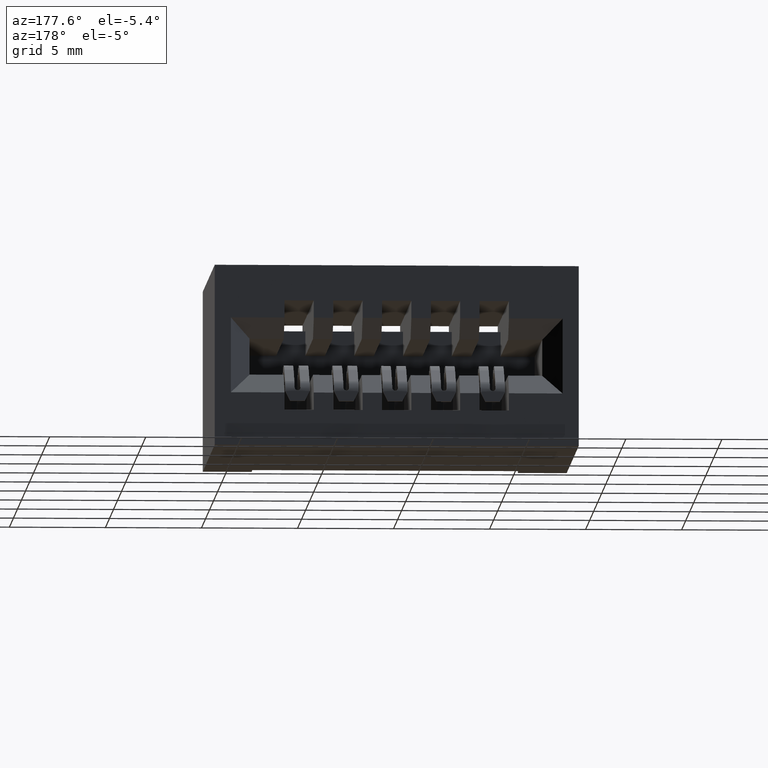
[diagram: clean part render]
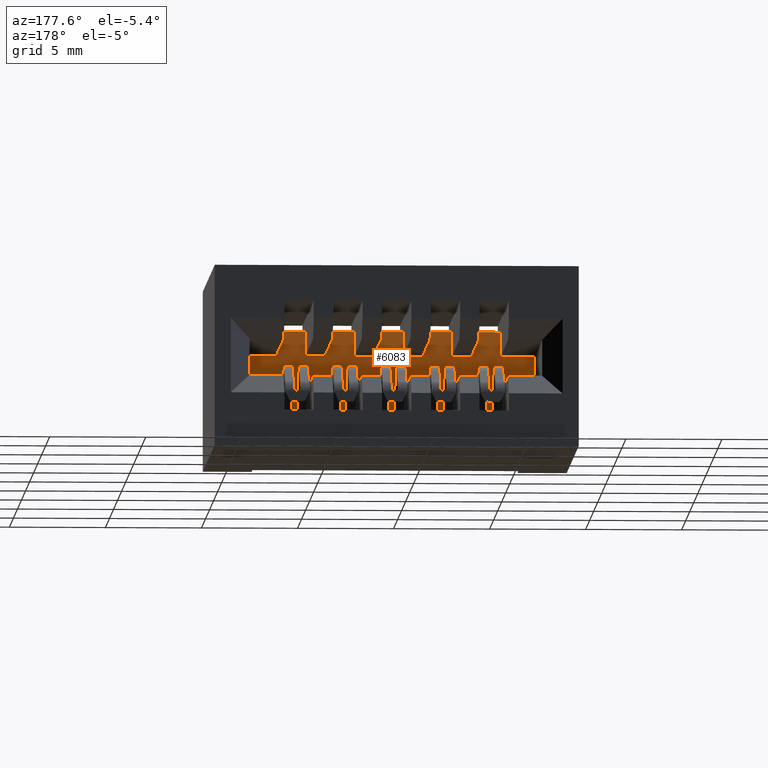
[diagram: same view with one face highlighted and labeled with its STEP entity id]
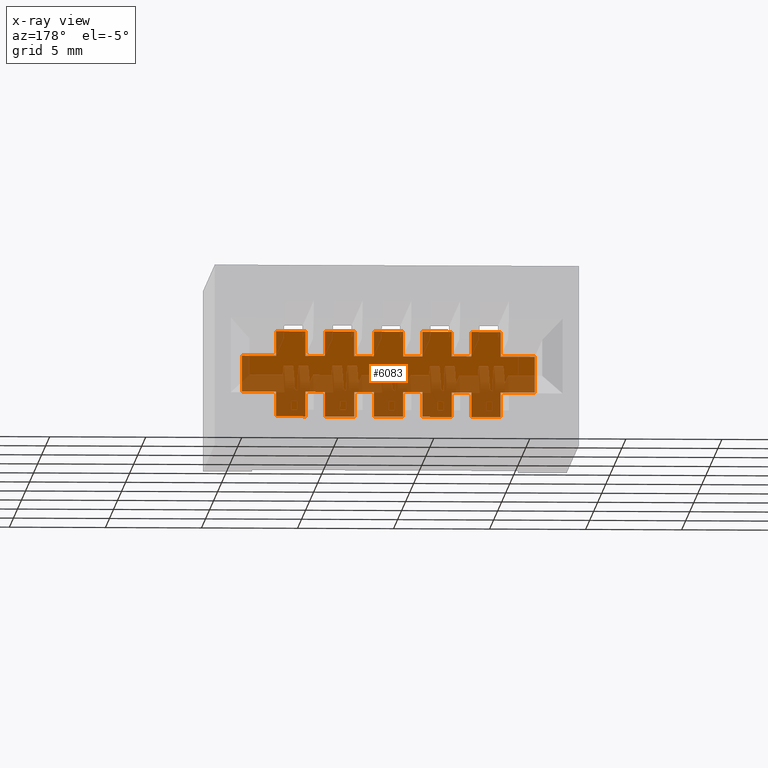
[diagram: x-ray of the same camera — body ghosted, the highlighted face saturated]
A machine part, auxiliary view. The second image highlights one B-rep face of the part: STEP entity #6083.
The next image is the same camera in x-ray: the body ghosted, the highlighted face saturated — about 55% of this face is hidden behind the body in this view.
In plain terms, the highlighted planar face has unit normal (0, -1, 0).
Its self-contained STEP definition (entity closure, byte-faithful):
#28 = CARTESIAN_POINT ( 'NONE',  ( 0.8199999999999998400, 0.1799999999999999900, -0.2725000000000000200 ) ) ;
#48 = DIRECTION ( 'NONE',  ( 1.000000000000000000, -0.0000000000000000000, -0.0000000000000000000 ) ) ;
#64 = ORIENTED_EDGE ( 'NONE', *, *, #4363, .T. ) ;
#73 = ORIENTED_EDGE ( 'NONE', *, *, #2637, .T. ) ;
#74 = CARTESIAN_POINT ( 'NONE',  ( 0.7199999999999998600, 0.1799999999999999900, -0.2725000000000000200 ) ) ;
#81 = VECTOR ( 'NONE', #4073, 39.37007874015748100 ) ;
#98 = CARTESIAN_POINT ( 'NONE',  ( 0.8199999999999998400, 0.1799999999999999900, -0.1479999999999999400 ) ) ;
#154 = CARTESIAN_POINT ( 'NONE',  ( 0.6200000000000000000, 0.1799999999999999900, -0.2725000000000000200 ) ) ;
#173 = CARTESIAN_POINT ( 'NONE',  ( 0.4799999999999999800, 0.1799999999999999900, -0.2220000000000001100 ) ) ;
#188 = DIRECTION ( 'NONE',  ( 0.0000000000000000000, 0.0000000000000000000, -1.000000000000000000 ) ) ;
#208 = VECTOR ( 'NONE', #7010, 39.37007874015748100 ) ;
#234 = VERTEX_POINT ( 'NONE', #2728 ) ;
#242 = ORIENTED_EDGE ( 'NONE', *, *, #6968, .F. ) ;
#281 = DIRECTION ( 'NONE',  ( 0.0000000000000000000, 0.0000000000000000000, -1.000000000000000000 ) ) ;
#293 = DIRECTION ( 'NONE',  ( 0.0000000000000000000, -1.000000000000000000, 0.0000000000000000000 ) ) ;
#313 = VERTEX_POINT ( 'NONE', #4986 ) ;
#324 = ORIENTED_EDGE ( 'NONE', *, *, #6653, .T. ) ;
#395 = VECTOR ( 'NONE', #841, 39.37007874015748100 ) ;
#410 = DIRECTION ( 'NONE',  ( -0.0000000000000000000, -0.0000000000000000000, -1.000000000000000000 ) ) ;
#432 = DIRECTION ( 'NONE',  ( -0.0000000000000000000, -0.0000000000000000000, -1.000000000000000000 ) ) ;
#492 = VECTOR ( 'NONE', #3937, 39.37007874015748100 ) ;
#506 = CARTESIAN_POINT ( 'NONE',  ( 0.5800000000000000700, 0.1799999999999999900, -0.1479999999999999100 ) ) ;
#518 = ORIENTED_EDGE ( 'NONE', *, *, #5367, .T. ) ;
#525 = LINE ( 'NONE', #2179, #3462 ) ;
#531 = VECTOR ( 'NONE', #2991, 39.37007874015748100 ) ;
#542 = CARTESIAN_POINT ( 'NONE',  ( 0.7199999999999998600, 0.1799999999999999900, -0.2220000000000001400 ) ) ;
#583 = VERTEX_POINT ( 'NONE', #6255 ) ;
#590 = CARTESIAN_POINT ( 'NONE',  ( 0.4799999999999999800, 0.1799999999999999900, -0.09750000000000005900 ) ) ;
#604 = ORIENTED_EDGE ( 'NONE', *, *, #6218, .F. ) ;
#611 = ORIENTED_EDGE ( 'NONE', *, *, #637, .T. ) ;
#619 = LINE ( 'NONE', #6635, #2147 ) ;
#637 = EDGE_CURVE ( 'NONE', #1033, #7137, #739, .T. ) ;
#662 = EDGE_CURVE ( 'NONE', #4400, #234, #2263, .T. ) ;
#676 = LINE ( 'NONE', #5632, #492 ) ;
#687 = EDGE_CURVE ( 'NONE', #881, #2327, #3304, .T. ) ;
#718 = LINE ( 'NONE', #2965, #6882 ) ;
#729 = CARTESIAN_POINT ( 'NONE',  ( 0.6799999999999999400, 0.1799999999999999900, -0.2220000000000001400 ) ) ;
#739 = LINE ( 'NONE', #6775, #5371 ) ;
#798 = ORIENTED_EDGE ( 'NONE', *, *, #1838, .T. ) ;
#803 = ORIENTED_EDGE ( 'NONE', *, *, #4804, .F. ) ;
#841 = DIRECTION ( 'NONE',  ( 1.000000000000000000, 0.0000000000000000000, 0.0000000000000000000 ) ) ;
#881 = VERTEX_POINT ( 'NONE', #7465 ) ;
#882 = DIRECTION ( 'NONE',  ( -0.0000000000000000000, -0.0000000000000000000, -1.000000000000000000 ) ) ;
#883 = DIRECTION ( 'NONE',  ( 0.0000000000000000000, 0.0000000000000000000, -1.000000000000000000 ) ) ;
#890 = VERTEX_POINT ( 'NONE', #3048 ) ;
#909 = EDGE_CURVE ( 'NONE', #4513, #583, #6273, .T. ) ;
#967 = VECTOR ( 'NONE', #5763, 39.37007874015748100 ) ;
#971 = VERTEX_POINT ( 'NONE', #3040 ) ;
#986 = CARTESIAN_POINT ( 'NONE',  ( 0.4200000000000000400, 0.1799999999999999900, -0.09750000000000005900 ) ) ;
#989 = ORIENTED_EDGE ( 'NONE', *, *, #5721, .T. ) ;
#1000 = VERTEX_POINT ( 'NONE', #2842 ) ;
#1033 = VERTEX_POINT ( 'NONE', #2483 ) ;
#1055 = VECTOR ( 'NONE', #3283, 39.37007874015748100 ) ;
#1080 = LINE ( 'NONE', #6614, #2245 ) ;
#1082 = VECTOR ( 'NONE', #3868, 39.37007874015748100 ) ;
#1129 = CARTESIAN_POINT ( 'NONE',  ( 0.6200000000000000000, 0.1799999999999999900, -0.1479999999999999100 ) ) ;
#1136 = VECTOR ( 'NONE', #6281, 39.37007874015748100 ) ;
#1153 = ORIENTED_EDGE ( 'NONE', *, *, #5121, .F. ) ;
#1158 = VERTEX_POINT ( 'NONE', #3911 ) ;
#1182 = CARTESIAN_POINT ( 'NONE',  ( 0.4200000000000000400, 0.1799999999999999900, -0.2220000000000001100 ) ) ;
#1209 = VERTEX_POINT ( 'NONE', #5451 ) ;
#1232 = LINE ( 'NONE', #5590, #1055 ) ;
#1338 = CARTESIAN_POINT ( 'NONE',  ( 0.3499999999999999800, 0.1799999999999999900, -0.1480000000000001900 ) ) ;
#1341 = ORIENTED_EDGE ( 'NONE', *, *, #5211, .T. ) ;
#1421 = CARTESIAN_POINT ( 'NONE',  ( 0.6200000000000000000, 0.1799999999999999900, -0.09750000000000007300 ) ) ;
#1422 = VECTOR ( 'NONE', #6154, 39.37007874015748100 ) ;
#1446 = VERTEX_POINT ( 'NONE', #6405 ) ;
#1459 = LINE ( 'NONE', #5457, #7404 ) ;
#1492 = DIRECTION ( 'NONE',  ( 1.000000000000000000, -0.0000000000000000000, -0.0000000000000000000 ) ) ;
#1494 = VERTEX_POINT ( 'NONE', #729 ) ;
#1535 = VERTEX_POINT ( 'NONE', #6306 ) ;
#1553 = EDGE_CURVE ( 'NONE', #3500, #2522, #3942, .T. ) ;
#1605 = VERTEX_POINT ( 'NONE', #590 ) ;
#1638 = LINE ( 'NONE', #2675, #6080 ) ;
#1644 = VERTEX_POINT ( 'NONE', #2738 ) ;
#1679 = AXIS2_PLACEMENT_3D ( 'NONE', #2619, #293, #4382 ) ;
#1713 = CARTESIAN_POINT ( 'NONE',  ( 0.8199999999999998400, 0.1799999999999999900, -0.2220000000000001400 ) ) ;
#1719 = LINE ( 'NONE', #5700, #6352 ) ;
#1721 = DIRECTION ( 'NONE',  ( 0.0000000000000000000, 0.0000000000000000000, -1.000000000000000000 ) ) ;
#1722 = VECTOR ( 'NONE', #432, 39.37007874015748100 ) ;
#1745 = LINE ( 'NONE', #1787, #208 ) ;
#1746 = VECTOR ( 'NONE', #3659, 39.37007874015748100 ) ;
#1754 = VECTOR ( 'NONE', #7200, 39.37007874015748100 ) ;
#1770 = VECTOR ( 'NONE', #4381, 39.37007874015748100 ) ;
#1787 = CARTESIAN_POINT ( 'NONE',  ( 0.8799999999999998900, 0.1799999999999999900, -0.1479999999999999400 ) ) ;
#1825 = VERTEX_POINT ( 'NONE', #4871 ) ;
#1838 = EDGE_CURVE ( 'NONE', #5482, #5814, #1719, .T. ) ;
#1926 = LINE ( 'NONE', #5368, #1746 ) ;
#1931 = LINE ( 'NONE', #1421, #1754 ) ;
#1952 = ORIENTED_EDGE ( 'NONE', *, *, #3791, .T. ) ;
#1956 = CARTESIAN_POINT ( 'NONE',  ( 0.3499999999999999800, 0.1799999999999999900, -0.2220000000000002000 ) ) ;
#1982 = CARTESIAN_POINT ( 'NONE',  ( 0.7799999999999999200, 0.1799999999999999900, -0.09750000000000008700 ) ) ;
#1992 = EDGE_CURVE ( 'NONE', #1446, #3412, #3935, .T. ) ;
#2092 = EDGE_CURVE ( 'NONE', #3534, #4876, #1638, .T. ) ;
#2122 = VECTOR ( 'NONE', #6829, 39.37007874015748100 ) ;
#2147 = VECTOR ( 'NONE', #7179, 39.37007874015748100 ) ;
#2167 = CARTESIAN_POINT ( 'NONE',  ( 0.6200000000000000000, 0.1799999999999999900, -0.1479999999999999100 ) ) ;
#2169 = VERTEX_POINT ( 'NONE', #3385 ) ;
#2179 = CARTESIAN_POINT ( 'NONE',  ( 0.4200000000000000400, 0.1799999999999999900, -0.2220000000000001100 ) ) ;
#2197 = EDGE_LOOP ( 'NONE', ( #64, #4883, #1952, #803, #6953, #3995, #7037, #2787, #5876, #4702, #3349, #604, #3711, #798, #6951, #4086, #1153, #4260, #1341, #5971, #3073, #6151, #4800, #324, #4977, #518, #2232, #6867, #2615, #2797, #2983, #73, #242, #3360, #3548, #611, #2320, #989, #4265, #2889, #6158, #3274, #3640, #6691 ) ) ;
#2201 = LINE ( 'NONE', #4389, #6839 ) ;
#2225 = VECTOR ( 'NONE', #281, 39.37007874015748100 ) ;
#2232 = ORIENTED_EDGE ( 'NONE', *, *, #7134, .T. ) ;
#2241 = CARTESIAN_POINT ( 'NONE',  ( 0.7799999999999999200, 0.1799999999999999900, -0.2220000000000001400 ) ) ;
#2245 = VECTOR ( 'NONE', #4161, 39.37007874015748100 ) ;
#2263 = LINE ( 'NONE', #542, #3485 ) ;
#2270 = CARTESIAN_POINT ( 'NONE',  ( 0.6200000000000000000, 0.1799999999999999900, -0.2220000000000001400 ) ) ;
#2298 = VECTOR ( 'NONE', #1721, 39.37007874015748100 ) ;
#2314 = LINE ( 'NONE', #74, #5237 ) ;
#2320 = ORIENTED_EDGE ( 'NONE', *, *, #3956, .F. ) ;
#2327 = VERTEX_POINT ( 'NONE', #2576 ) ;
#2382 = LINE ( 'NONE', #4366, #3775 ) ;
#2398 = VECTOR ( 'NONE', #3133, 39.37007874015748100 ) ;
#2439 = VECTOR ( 'NONE', #5269, 39.37007874015748100 ) ;
#2483 = CARTESIAN_POINT ( 'NONE',  ( 0.6799999999999999400, 0.1799999999999999900, -0.1479999999999999100 ) ) ;
#2505 = LINE ( 'NONE', #7448, #967 ) ;
#2522 = VERTEX_POINT ( 'NONE', #3713 ) ;
#2576 = CARTESIAN_POINT ( 'NONE',  ( 0.8199999999999998400, 0.1799999999999999900, -0.1479999999999999400 ) ) ;
#2615 = ORIENTED_EDGE ( 'NONE', *, *, #5702, .F. ) ;
#2619 = CARTESIAN_POINT ( 'NONE',  ( 0.9500000000000005100, 0.1799999999999999900, -0.2220000000000002000 ) ) ;
#2637 = EDGE_CURVE ( 'NONE', #583, #4918, #2999, .T. ) ;
#2675 = CARTESIAN_POINT ( 'NONE',  ( 0.3499999999999999800, 0.1799999999999999900, -0.2220000000000002000 ) ) ;
#2697 = DIRECTION ( 'NONE',  ( 1.000000000000000000, 0.0000000000000000000, 0.0000000000000000000 ) ) ;
#2699 = CARTESIAN_POINT ( 'NONE',  ( 0.5800000000000000700, 0.1799999999999999900, -0.2220000000000001100 ) ) ;
#2715 = VECTOR ( 'NONE', #883, 39.37007874015748100 ) ;
#2725 = VERTEX_POINT ( 'NONE', #5531 ) ;
#2728 = CARTESIAN_POINT ( 'NONE',  ( 0.7199999999999998600, 0.1799999999999999900, -0.2725000000000000200 ) ) ;
#2738 = CARTESIAN_POINT ( 'NONE',  ( 0.9500000000000005100, 0.1799999999999999900, -0.1480000000000001900 ) ) ;
#2787 = ORIENTED_EDGE ( 'NONE', *, *, #4852, .F. ) ;
#2797 = ORIENTED_EDGE ( 'NONE', *, *, #5473, .T. ) ;
#2842 = CARTESIAN_POINT ( 'NONE',  ( 0.3499999999999999800, 0.1799999999999999900, -0.1480000000000001900 ) ) ;
#2888 = LINE ( 'NONE', #1338, #6157 ) ;
#2889 = ORIENTED_EDGE ( 'NONE', *, *, #3783, .T. ) ;
#2948 = CARTESIAN_POINT ( 'NONE',  ( 0.8799999999999998900, 0.1799999999999999900, -0.2220000000000001400 ) ) ;
#2965 = CARTESIAN_POINT ( 'NONE',  ( 0.3499999999999999800, 0.1799999999999999900, -0.1480000000000001900 ) ) ;
#2967 = EDGE_CURVE ( 'NONE', #4400, #1494, #619, .T. ) ;
#2983 = ORIENTED_EDGE ( 'NONE', *, *, #909, .T. ) ;
#2991 = DIRECTION ( 'NONE',  ( 0.0000000000000000000, 0.0000000000000000000, -1.000000000000000000 ) ) ;
#2999 = LINE ( 'NONE', #3473, #1082 ) ;
#3010 = VERTEX_POINT ( 'NONE', #7214 ) ;
#3040 = CARTESIAN_POINT ( 'NONE',  ( 0.4200000000000000400, 0.1799999999999999900, -0.2724999999999999600 ) ) ;
#3048 = CARTESIAN_POINT ( 'NONE',  ( 0.5200000000000000200, 0.1799999999999999900, -0.09750000000000007300 ) ) ;
#3053 = LINE ( 'NONE', #1129, #5952 ) ;
#3071 = CARTESIAN_POINT ( 'NONE',  ( 0.7199999999999998600, 0.1799999999999999900, -0.1479999999999999400 ) ) ;
#3073 = ORIENTED_EDGE ( 'NONE', *, *, #4262, .F. ) ;
#3128 = CARTESIAN_POINT ( 'NONE',  ( 0.7799999999999999200, 0.1799999999999999900, -0.2220000000000001400 ) ) ;
#3133 = DIRECTION ( 'NONE',  ( 1.000000000000000000, -0.0000000000000000000, -0.0000000000000000000 ) ) ;
#3153 = LINE ( 'NONE', #5565, #1422 ) ;
#3164 = VERTEX_POINT ( 'NONE', #3128 ) ;
#3261 = VECTOR ( 'NONE', #4006, 39.37007874015748100 ) ;
#3271 = EDGE_CURVE ( 'NONE', #1494, #4234, #1459, .T. ) ;
#3274 = ORIENTED_EDGE ( 'NONE', *, *, #5997, .T. ) ;
#3283 = DIRECTION ( 'NONE',  ( 1.000000000000000000, 0.0000000000000000000, 0.0000000000000000000 ) ) ;
#3304 = LINE ( 'NONE', #98, #1722 ) ;
#3308 = DIRECTION ( 'NONE',  ( -1.000000000000000000, -0.0000000000000000000, -0.0000000000000000000 ) ) ;
#3330 = VERTEX_POINT ( 'NONE', #6558 ) ;
#3349 = ORIENTED_EDGE ( 'NONE', *, *, #3271, .T. ) ;
#3360 = ORIENTED_EDGE ( 'NONE', *, *, #6683, .T. ) ;
#3374 = CARTESIAN_POINT ( 'NONE',  ( 0.5200000000000000200, 0.1799999999999999900, -0.2220000000000002000 ) ) ;
#3385 = CARTESIAN_POINT ( 'NONE',  ( 0.9500000000000005100, 0.1799999999999999900, -0.2220000000000002000 ) ) ;
#3412 = VERTEX_POINT ( 'NONE', #7222 ) ;
#3438 = VERTEX_POINT ( 'NONE', #6316 ) ;
#3439 = EDGE_CURVE ( 'NONE', #3330, #3164, #6174, .T. ) ;
#3451 = LINE ( 'NONE', #173, #3261 ) ;
#3462 = VECTOR ( 'NONE', #5797, 39.37007874015748100 ) ;
#3466 = EDGE_CURVE ( 'NONE', #3164, #313, #4278, .T. ) ;
#3473 = CARTESIAN_POINT ( 'NONE',  ( 0.3499999999999999800, 0.1799999999999999900, -0.1480000000000001900 ) ) ;
#3485 = VECTOR ( 'NONE', #5957, 39.37007874015748100 ) ;
#3500 = VERTEX_POINT ( 'NONE', #1982 ) ;
#3534 = VERTEX_POINT ( 'NONE', #1182 ) ;
#3548 = ORIENTED_EDGE ( 'NONE', *, *, #7291, .T. ) ;
#3638 = EDGE_CURVE ( 'NONE', #5961, #7204, #6259, .T. ) ;
#3640 = ORIENTED_EDGE ( 'NONE', *, *, #6476, .T. ) ;
#3641 = CARTESIAN_POINT ( 'NONE',  ( 0.4200000000000000400, 0.1799999999999999900, -0.1479999999999999100 ) ) ;
#3659 = DIRECTION ( 'NONE',  ( -0.0000000000000000000, -0.0000000000000000000, -1.000000000000000000 ) ) ;
#3678 = CARTESIAN_POINT ( 'NONE',  ( 0.5800000000000000700, 0.1799999999999999900, -0.09750000000000007300 ) ) ;
#3711 = ORIENTED_EDGE ( 'NONE', *, *, #5744, .F. ) ;
#3713 = CARTESIAN_POINT ( 'NONE',  ( 0.7799999999999999200, 0.1799999999999999900, -0.1479999999999999400 ) ) ;
#3742 = CARTESIAN_POINT ( 'NONE',  ( 0.3499999999999999800, 0.1799999999999999900, -0.1480000000000001900 ) ) ;
#3770 = EDGE_CURVE ( 'NONE', #971, #6575, #1080, .T. ) ;
#3775 = VECTOR ( 'NONE', #882, 39.37007874015748100 ) ;
#3783 = EDGE_CURVE ( 'NONE', #2522, #2327, #718, .T. ) ;
#3791 = EDGE_CURVE ( 'NONE', #2725, #1209, #6698, .T. ) ;
#3868 = DIRECTION ( 'NONE',  ( 1.000000000000000000, 0.0000000000000000000, 0.0000000000000000000 ) ) ;
#3911 = CARTESIAN_POINT ( 'NONE',  ( 0.5200000000000000200, 0.1799999999999999900, -0.1479999999999999100 ) ) ;
#3914 = VECTOR ( 'NONE', #6124, 39.37007874015748100 ) ;
#3935 = LINE ( 'NONE', #3641, #6812 ) ;
#3937 = DIRECTION ( 'NONE',  ( 1.000000000000000000, -0.0000000000000000000, -0.0000000000000000000 ) ) ;
#3942 = LINE ( 'NONE', #6601, #2439 ) ;
#3956 = EDGE_CURVE ( 'NONE', #4309, #7137, #5608, .T. ) ;
#3995 = ORIENTED_EDGE ( 'NONE', *, *, #3439, .T. ) ;
#3999 = CARTESIAN_POINT ( 'NONE',  ( 0.6200000000000000000, 0.1799999999999999900, -0.09750000000000007300 ) ) ;
#4006 = DIRECTION ( 'NONE',  ( 0.0000000000000000000, 0.0000000000000000000, -1.000000000000000000 ) ) ;
#4055 = VERTEX_POINT ( 'NONE', #6640 ) ;
#4068 = LINE ( 'NONE', #2270, #2298 ) ;
#4073 = DIRECTION ( 'NONE',  ( 1.000000000000000000, -0.0000000000000000000, -0.0000000000000000000 ) ) ;
#4083 = DIRECTION ( 'NONE',  ( -1.000000000000000000, -0.0000000000000000000, -0.0000000000000000000 ) ) ;
#4086 = ORIENTED_EDGE ( 'NONE', *, *, #3638, .F. ) ;
#4092 = VECTOR ( 'NONE', #7059, 39.37007874015748100 ) ;
#4108 = CARTESIAN_POINT ( 'NONE',  ( 0.6799999999999999400, 0.1799999999999999900, -0.09750000000000007300 ) ) ;
#4161 = DIRECTION ( 'NONE',  ( 1.000000000000000000, -0.0000000000000000000, -0.0000000000000000000 ) ) ;
#4234 = VERTEX_POINT ( 'NONE', #6067 ) ;
#4260 = ORIENTED_EDGE ( 'NONE', *, *, #4953, .T. ) ;
#4262 = EDGE_CURVE ( 'NONE', #3534, #971, #525, .T. ) ;
#4264 = LINE ( 'NONE', #4295, #4092 ) ;
#4265 = ORIENTED_EDGE ( 'NONE', *, *, #1553, .T. ) ;
#4278 = LINE ( 'NONE', #2241, #2715 ) ;
#4295 = CARTESIAN_POINT ( 'NONE',  ( 0.9500000000000005100, 0.1799999999999999900, -0.1480000000000001900 ) ) ;
#4309 = VERTEX_POINT ( 'NONE', #5403 ) ;
#4319 = EDGE_CURVE ( 'NONE', #3010, #1644, #2888, .T. ) ;
#4363 = EDGE_CURVE ( 'NONE', #1644, #2169, #4264, .T. ) ;
#4366 = CARTESIAN_POINT ( 'NONE',  ( 0.6799999999999999400, 0.1799999999999999900, -0.1479999999999999100 ) ) ;
#4381 = DIRECTION ( 'NONE',  ( -1.000000000000000000, -0.0000000000000000000, -0.0000000000000000000 ) ) ;
#4382 = DIRECTION ( 'NONE',  ( 0.0000000000000000000, -0.0000000000000000000, -1.000000000000000000 ) ) ;
#4389 = CARTESIAN_POINT ( 'NONE',  ( 0.3499999999999999800, 0.1799999999999999900, -0.2220000000000002000 ) ) ;
#4400 = VERTEX_POINT ( 'NONE', #5649 ) ;
#4437 = VECTOR ( 'NONE', #48, 39.37007874015748100 ) ;
#4440 = DIRECTION ( 'NONE',  ( 0.0000000000000000000, 0.0000000000000000000, -1.000000000000000000 ) ) ;
#4513 = VERTEX_POINT ( 'NONE', #3678 ) ;
#4519 = EDGE_CURVE ( 'NONE', #3330, #4055, #6245, .T. ) ;
#4608 = LINE ( 'NONE', #5740, #1136 ) ;
#4642 = VECTOR ( 'NONE', #3308, 39.37007874015748100 ) ;
#4701 = LINE ( 'NONE', #4823, #1770 ) ;
#4702 = ORIENTED_EDGE ( 'NONE', *, *, #2967, .T. ) ;
#4709 = VECTOR ( 'NONE', #188, 39.37007874015748100 ) ;
#4739 = VECTOR ( 'NONE', #410, 39.37007874015748100 ) ;
#4800 = ORIENTED_EDGE ( 'NONE', *, *, #6297, .T. ) ;
#4804 = EDGE_CURVE ( 'NONE', #4055, #1209, #7292, .T. ) ;
#4823 = CARTESIAN_POINT ( 'NONE',  ( 0.3499999999999999800, 0.1799999999999999900, -0.2220000000000002000 ) ) ;
#4852 = EDGE_CURVE ( 'NONE', #234, #313, #2314, .T. ) ;
#4856 = CARTESIAN_POINT ( 'NONE',  ( 0.8199999999999998400, 0.1799999999999999900, -0.09750000000000010000 ) ) ;
#4871 = CARTESIAN_POINT ( 'NONE',  ( 0.4799999999999999800, 0.1799999999999999900, -0.2220000000000001100 ) ) ;
#4876 = VERTEX_POINT ( 'NONE', #1956 ) ;
#4883 = ORIENTED_EDGE ( 'NONE', *, *, #7318, .T. ) ;
#4916 = CARTESIAN_POINT ( 'NONE',  ( 0.5200000000000000200, 0.1799999999999999900, -0.2724999999999999600 ) ) ;
#4918 = VERTEX_POINT ( 'NONE', #2167 ) ;
#4953 = EDGE_CURVE ( 'NONE', #7462, #1825, #4701, .T. ) ;
#4977 = ORIENTED_EDGE ( 'NONE', *, *, #1992, .F. ) ;
#4986 = CARTESIAN_POINT ( 'NONE',  ( 0.7799999999999999200, 0.1799999999999999900, -0.2725000000000000200 ) ) ;
#5072 = DIRECTION ( 'NONE',  ( -0.0000000000000000000, -0.0000000000000000000, -1.000000000000000000 ) ) ;
#5079 = EDGE_CURVE ( 'NONE', #5814, #7204, #5680, .T. ) ;
#5121 = EDGE_CURVE ( 'NONE', #7462, #5961, #5508, .T. ) ;
#5129 = LINE ( 'NONE', #3742, #395 ) ;
#5136 = CARTESIAN_POINT ( 'NONE',  ( 0.3499999999999999800, 0.1799999999999999900, -0.1480000000000001900 ) ) ;
#5156 = VERTEX_POINT ( 'NONE', #4108 ) ;
#5211 = EDGE_CURVE ( 'NONE', #1825, #6575, #3451, .T. ) ;
#5237 = VECTOR ( 'NONE', #1492, 39.37007874015748100 ) ;
#5269 = DIRECTION ( 'NONE',  ( -0.0000000000000000000, -0.0000000000000000000, -1.000000000000000000 ) ) ;
#5306 = LINE ( 'NONE', #4856, #2398 ) ;
#5367 = EDGE_CURVE ( 'NONE', #1446, #1605, #6767, .T. ) ;
#5368 = CARTESIAN_POINT ( 'NONE',  ( 0.4799999999999999800, 0.1799999999999999900, -0.1479999999999999100 ) ) ;
#5371 = VECTOR ( 'NONE', #6409, 39.37007874015748100 ) ;
#5403 = CARTESIAN_POINT ( 'NONE',  ( 0.7199999999999998600, 0.1799999999999999900, -0.09750000000000008700 ) ) ;
#5411 = CARTESIAN_POINT ( 'NONE',  ( 0.7199999999999998600, 0.1799999999999999900, -0.1479999999999999400 ) ) ;
#5451 = CARTESIAN_POINT ( 'NONE',  ( 0.8799999999999998900, 0.1799999999999999900, -0.2725000000000000200 ) ) ;
#5457 = CARTESIAN_POINT ( 'NONE',  ( 0.6799999999999999400, 0.1799999999999999900, -0.2220000000000001400 ) ) ;
#5473 = EDGE_CURVE ( 'NONE', #890, #4513, #3153, .T. ) ;
#5482 = VERTEX_POINT ( 'NONE', #7285 ) ;
#5508 = LINE ( 'NONE', #6134, #2225 ) ;
#5513 = EDGE_CURVE ( 'NONE', #1535, #1158, #1232, .T. ) ;
#5531 = CARTESIAN_POINT ( 'NONE',  ( 0.8799999999999998900, 0.1799999999999999900, -0.2220000000000001400 ) ) ;
#5565 = CARTESIAN_POINT ( 'NONE',  ( 0.5200000000000000200, 0.1799999999999999900, -0.09750000000000007300 ) ) ;
#5590 = CARTESIAN_POINT ( 'NONE',  ( 0.3499999999999999800, 0.1799999999999999900, -0.1480000000000001900 ) ) ;
#5608 = LINE ( 'NONE', #5411, #3914 ) ;
#5632 = CARTESIAN_POINT ( 'NONE',  ( 0.6200000000000000000, 0.1799999999999999900, -0.2725000000000000200 ) ) ;
#5649 = CARTESIAN_POINT ( 'NONE',  ( 0.7199999999999998600, 0.1799999999999999900, -0.2220000000000002000 ) ) ;
#5680 = LINE ( 'NONE', #2699, #7036 ) ;
#5682 = VERTEX_POINT ( 'NONE', #3999 ) ;
#5700 = CARTESIAN_POINT ( 'NONE',  ( 0.3499999999999999800, 0.1799999999999999900, -0.2220000000000002000 ) ) ;
#5702 = EDGE_CURVE ( 'NONE', #890, #1158, #4608, .T. ) ;
#5721 = EDGE_CURVE ( 'NONE', #4309, #3500, #2505, .T. ) ;
#5740 = CARTESIAN_POINT ( 'NONE',  ( 0.5200000000000000200, 0.1799999999999999900, -0.1479999999999999100 ) ) ;
#5744 = EDGE_CURVE ( 'NONE', #5482, #5936, #4068, .T. ) ;
#5763 = DIRECTION ( 'NONE',  ( 1.000000000000000000, -0.0000000000000000000, -0.0000000000000000000 ) ) ;
#5797 = DIRECTION ( 'NONE',  ( 0.0000000000000000000, 0.0000000000000000000, -1.000000000000000000 ) ) ;
#5814 = VERTEX_POINT ( 'NONE', #6995 ) ;
#5876 = ORIENTED_EDGE ( 'NONE', *, *, #662, .F. ) ;
#5908 = DIRECTION ( 'NONE',  ( 1.000000000000000000, 0.0000000000000000000, 0.0000000000000000000 ) ) ;
#5936 = VERTEX_POINT ( 'NONE', #154 ) ;
#5951 = VECTOR ( 'NONE', #6865, 39.37007874015748100 ) ;
#5952 = VECTOR ( 'NONE', #6350, 39.37007874015748100 ) ;
#5957 = DIRECTION ( 'NONE',  ( 0.0000000000000000000, 0.0000000000000000000, -1.000000000000000000 ) ) ;
#5961 = VERTEX_POINT ( 'NONE', #7069 ) ;
#5971 = ORIENTED_EDGE ( 'NONE', *, *, #3770, .F. ) ;
#5997 = EDGE_CURVE ( 'NONE', #881, #3438, #5306, .T. ) ;
#6067 = CARTESIAN_POINT ( 'NONE',  ( 0.6799999999999999400, 0.1799999999999999900, -0.2725000000000000200 ) ) ;
#6080 = VECTOR ( 'NONE', #6368, 39.37007874015748100 ) ;
#6083 = ADVANCED_FACE ( 'NONE', ( #6315 ), #7231, .F. ) ;
#6124 = DIRECTION ( 'NONE',  ( -0.0000000000000000000, -0.0000000000000000000, -1.000000000000000000 ) ) ;
#6125 = LINE ( 'NONE', #5136, #5951 ) ;
#6134 = CARTESIAN_POINT ( 'NONE',  ( 0.5200000000000000200, 0.1799999999999999900, -0.2220000000000001100 ) ) ;
#6151 = ORIENTED_EDGE ( 'NONE', *, *, #2092, .T. ) ;
#6154 = DIRECTION ( 'NONE',  ( 1.000000000000000000, -0.0000000000000000000, -0.0000000000000000000 ) ) ;
#6157 = VECTOR ( 'NONE', #5908, 39.37007874015748100 ) ;
#6158 = ORIENTED_EDGE ( 'NONE', *, *, #687, .F. ) ;
#6174 = LINE ( 'NONE', #6593, #4642 ) ;
#6218 = EDGE_CURVE ( 'NONE', #5936, #4234, #676, .T. ) ;
#6245 = LINE ( 'NONE', #1713, #4709 ) ;
#6255 = CARTESIAN_POINT ( 'NONE',  ( 0.5800000000000000700, 0.1799999999999999900, -0.1479999999999999100 ) ) ;
#6259 = LINE ( 'NONE', #4916, #81 ) ;
#6273 = LINE ( 'NONE', #506, #4739 ) ;
#6281 = DIRECTION ( 'NONE',  ( -0.0000000000000000000, -0.0000000000000000000, -1.000000000000000000 ) ) ;
#6297 = EDGE_CURVE ( 'NONE', #4876, #1000, #6125, .T. ) ;
#6306 = CARTESIAN_POINT ( 'NONE',  ( 0.4799999999999999800, 0.1799999999999999900, -0.1479999999999999100 ) ) ;
#6315 = FACE_OUTER_BOUND ( 'NONE', #2197, .T. ) ;
#6316 = CARTESIAN_POINT ( 'NONE',  ( 0.8799999999999998900, 0.1799999999999999900, -0.09750000000000010000 ) ) ;
#6350 = DIRECTION ( 'NONE',  ( -0.0000000000000000000, -0.0000000000000000000, -1.000000000000000000 ) ) ;
#6352 = VECTOR ( 'NONE', #4083, 39.37007874015748100 ) ;
#6368 = DIRECTION ( 'NONE',  ( -1.000000000000000000, -0.0000000000000000000, -0.0000000000000000000 ) ) ;
#6376 = DIRECTION ( 'NONE',  ( 0.0000000000000000000, 0.0000000000000000000, -1.000000000000000000 ) ) ;
#6405 = CARTESIAN_POINT ( 'NONE',  ( 0.4200000000000000400, 0.1799999999999999900, -0.09750000000000005900 ) ) ;
#6409 = DIRECTION ( 'NONE',  ( 1.000000000000000000, 0.0000000000000000000, 0.0000000000000000000 ) ) ;
#6476 = EDGE_CURVE ( 'NONE', #3438, #3010, #1745, .T. ) ;
#6537 = CARTESIAN_POINT ( 'NONE',  ( 0.4799999999999999800, 0.1799999999999999900, -0.2724999999999999600 ) ) ;
#6558 = CARTESIAN_POINT ( 'NONE',  ( 0.8199999999999998400, 0.1799999999999999900, -0.2220000000000002000 ) ) ;
#6575 = VERTEX_POINT ( 'NONE', #6537 ) ;
#6593 = CARTESIAN_POINT ( 'NONE',  ( 0.3499999999999999800, 0.1799999999999999900, -0.2220000000000002000 ) ) ;
#6601 = CARTESIAN_POINT ( 'NONE',  ( 0.7799999999999999200, 0.1799999999999999900, -0.1479999999999999400 ) ) ;
#6614 = CARTESIAN_POINT ( 'NONE',  ( 0.4200000000000000400, 0.1799999999999999900, -0.2724999999999999600 ) ) ;
#6635 = CARTESIAN_POINT ( 'NONE',  ( 0.3499999999999999800, 0.1799999999999999900, -0.2220000000000002000 ) ) ;
#6640 = CARTESIAN_POINT ( 'NONE',  ( 0.8199999999999998400, 0.1799999999999999900, -0.2725000000000000200 ) ) ;
#6653 = EDGE_CURVE ( 'NONE', #1000, #3412, #5129, .T. ) ;
#6671 = DIRECTION ( 'NONE',  ( -1.000000000000000000, -0.0000000000000000000, -0.0000000000000000000 ) ) ;
#6683 = EDGE_CURVE ( 'NONE', #5682, #5156, #1931, .T. ) ;
#6691 = ORIENTED_EDGE ( 'NONE', *, *, #4319, .T. ) ;
#6698 = LINE ( 'NONE', #2948, #531 ) ;
#6767 = LINE ( 'NONE', #986, #2122 ) ;
#6775 = CARTESIAN_POINT ( 'NONE',  ( 0.3499999999999999800, 0.1799999999999999900, -0.1480000000000001900 ) ) ;
#6812 = VECTOR ( 'NONE', #5072, 39.37007874015748100 ) ;
#6829 = DIRECTION ( 'NONE',  ( 1.000000000000000000, -0.0000000000000000000, -0.0000000000000000000 ) ) ;
#6839 = VECTOR ( 'NONE', #6671, 39.37007874015748100 ) ;
#6865 = DIRECTION ( 'NONE',  ( -0.0000000000000000000, -0.0000000000000000000, 1.000000000000000000 ) ) ;
#6867 = ORIENTED_EDGE ( 'NONE', *, *, #5513, .T. ) ;
#6882 = VECTOR ( 'NONE', #2697, 39.37007874015748100 ) ;
#6951 = ORIENTED_EDGE ( 'NONE', *, *, #5079, .T. ) ;
#6953 = ORIENTED_EDGE ( 'NONE', *, *, #4519, .F. ) ;
#6968 = EDGE_CURVE ( 'NONE', #5682, #4918, #3053, .T. ) ;
#6995 = CARTESIAN_POINT ( 'NONE',  ( 0.5800000000000000700, 0.1799999999999999900, -0.2220000000000001100 ) ) ;
#7010 = DIRECTION ( 'NONE',  ( -0.0000000000000000000, -0.0000000000000000000, -1.000000000000000000 ) ) ;
#7036 = VECTOR ( 'NONE', #4440, 39.37007874015748100 ) ;
#7037 = ORIENTED_EDGE ( 'NONE', *, *, #3466, .T. ) ;
#7059 = DIRECTION ( 'NONE',  ( 0.0000000000000000000, 0.0000000000000000000, -1.000000000000000000 ) ) ;
#7069 = CARTESIAN_POINT ( 'NONE',  ( 0.5200000000000000200, 0.1799999999999999900, -0.2724999999999999600 ) ) ;
#7134 = EDGE_CURVE ( 'NONE', #1605, #1535, #1926, .T. ) ;
#7135 = CARTESIAN_POINT ( 'NONE',  ( 0.5800000000000000700, 0.1799999999999999900, -0.2724999999999999600 ) ) ;
#7137 = VERTEX_POINT ( 'NONE', #3071 ) ;
#7179 = DIRECTION ( 'NONE',  ( -1.000000000000000000, -0.0000000000000000000, -0.0000000000000000000 ) ) ;
#7200 = DIRECTION ( 'NONE',  ( 1.000000000000000000, -0.0000000000000000000, -0.0000000000000000000 ) ) ;
#7204 = VERTEX_POINT ( 'NONE', #7135 ) ;
#7214 = CARTESIAN_POINT ( 'NONE',  ( 0.8799999999999998900, 0.1799999999999999900, -0.1479999999999999400 ) ) ;
#7222 = CARTESIAN_POINT ( 'NONE',  ( 0.4200000000000000400, 0.1799999999999999900, -0.1479999999999999100 ) ) ;
#7231 = PLANE ( 'NONE',  #1679 ) ;
#7285 = CARTESIAN_POINT ( 'NONE',  ( 0.6200000000000000000, 0.1799999999999999900, -0.2220000000000002000 ) ) ;
#7291 = EDGE_CURVE ( 'NONE', #5156, #1033, #2382, .T. ) ;
#7292 = LINE ( 'NONE', #28, #4437 ) ;
#7318 = EDGE_CURVE ( 'NONE', #2169, #2725, #2201, .T. ) ;
#7404 = VECTOR ( 'NONE', #6376, 39.37007874015748100 ) ;
#7448 = CARTESIAN_POINT ( 'NONE',  ( 0.7199999999999998600, 0.1799999999999999900, -0.09750000000000008700 ) ) ;
#7462 = VERTEX_POINT ( 'NONE', #3374 ) ;
#7465 = CARTESIAN_POINT ( 'NONE',  ( 0.8199999999999998400, 0.1799999999999999900, -0.09750000000000010000 ) ) ;